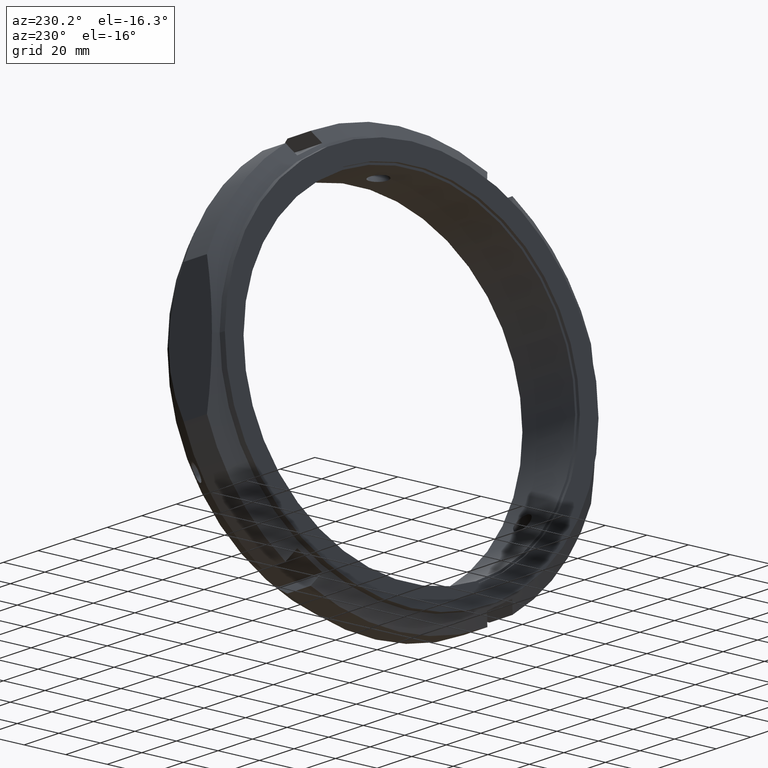
[diagram: clean part render]
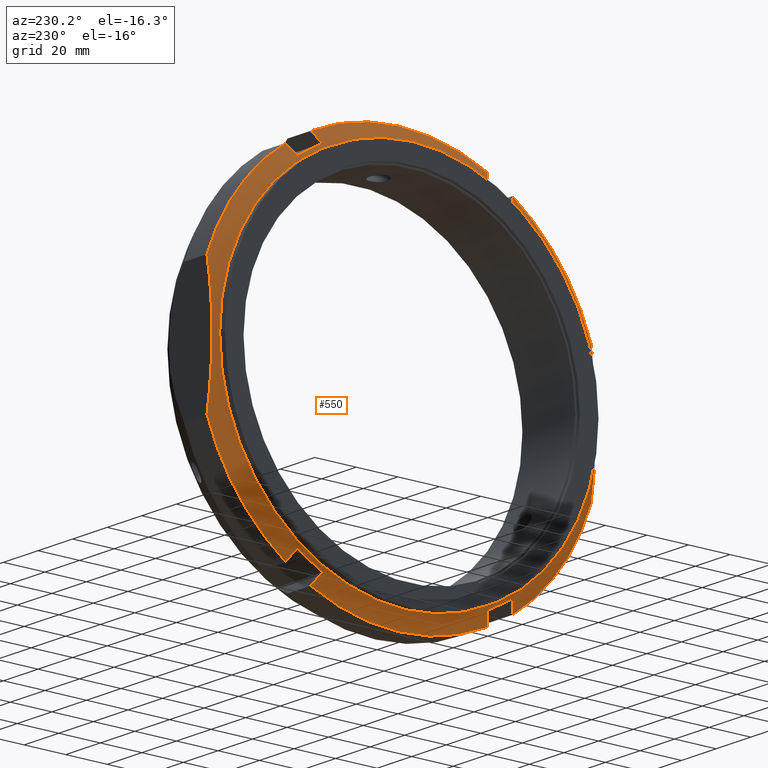
[diagram: same view with one face highlighted and labeled with its STEP entity id]
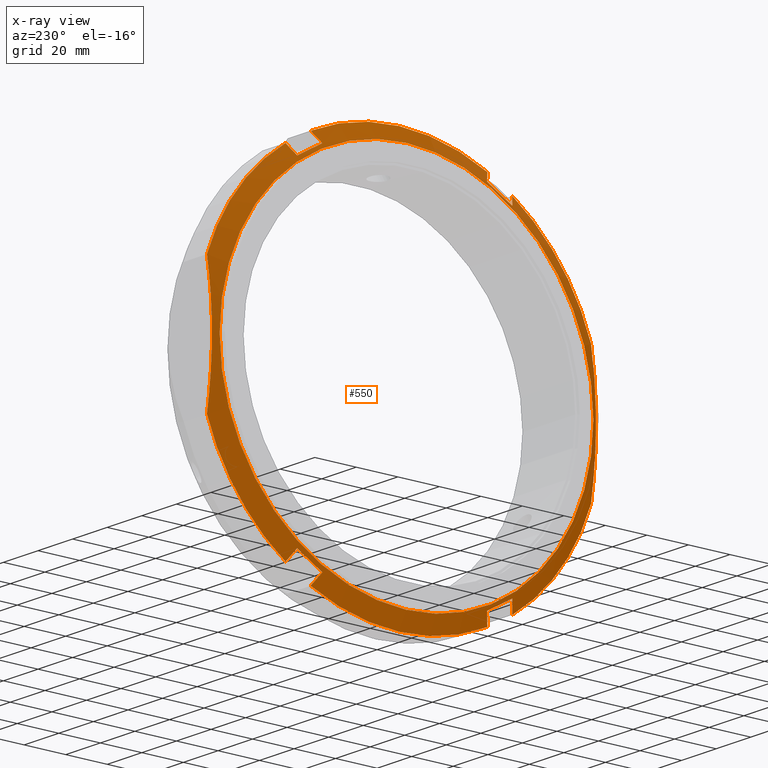
[diagram: x-ray of the same camera — body ghosted, the highlighted face saturated]
A machine part, auxiliary view. The second image highlights one B-rep face of the part: STEP entity #550.
The next image is the same camera in x-ray: the body ghosted, the highlighted face saturated — about 0% of this face is hidden behind the body in this view.
In plain terms, the highlighted conical surface has half-angle 60 deg.
Its self-contained STEP definition (entity closure, byte-faithful):
#73=CARTESIAN_POINT('',(4.020390926439882,51.81217782649103,-75.741324446276153));
#74=VERTEX_POINT('',#73);
#75=CARTESIAN_POINT('',(4.02039092643988,39.687822173508899,-82.741324446276138));
#76=VERTEX_POINT('',#75);
#77=CARTESIAN_POINT('',(4.020390926439882,51.81217782649103,-75.741324446276153));
#78=CARTESIAN_POINT('',(3.712109632995445,45.74999999990014,-79.241324446333778));
#79=CARTESIAN_POINT('',(4.02039092643988,39.687822173508899,-82.741324446276138));
#87=(BOUNDED_CURVE()B_SPLINE_CURVE(2,(#77,#78,#79),.UNSPECIFIED.,.F.,.U.)B_SPLINE_CURVE_WITH_KNOTS((3,3),(2.659556565316221,4.110967786608089),.UNSPECIFIED.)CURVE()GEOMETRIC_REPRESENTATION_ITEM()RATIONAL_B_SPLINE_CURVE((1.031280151536854,1.034293618954947,1.031280151536854))REPRESENTATION_ITEM(''));
#88=EDGE_CURVE('',#74,#76,#87,.T.);
#127=CARTESIAN_POINT('',(7.330127018922161,42.562018824970394,-87.719579077551813));
#128=VERTEX_POINT('',#127);
#129=CARTESIAN_POINT('',(4.02039092643988,39.687822173508899,-82.741324446276138));
#130=CARTESIAN_POINT('',(5.624859432743699,41.081392899205191,-85.155059747122777));
#131=CARTESIAN_POINT('',(7.330127018922161,42.562018824970394,-87.719579077551813));
#139=(BOUNDED_CURVE()B_SPLINE_CURVE(2,(#129,#130,#131),.UNSPECIFIED.,.F.,.U.)B_SPLINE_CURVE_WITH_KNOTS((3,3),(0.478668599135934,1.127520368114833),.UNSPECIFIED.)CURVE()GEOMETRIC_REPRESENTATION_ITEM()RATIONAL_B_SPLINE_CURVE((1.000681121779794,1.000802202903293,1.0))REPRESENTATION_ITEM(''));
#140=EDGE_CURVE('',#76,#128,#139,.T.);
#172=CARTESIAN_POINT('',(7.330127018922164,54.68637447795254,-80.719579077551828));
#173=VERTEX_POINT('',#172);
#174=CARTESIAN_POINT('',(7.330127018922161,54.68637447795254,-80.719579077551799));
#175=CARTESIAN_POINT('',(5.624859430328719,53.205748550089318,-78.15505974348892));
#176=CARTESIAN_POINT('',(4.020390926439882,51.81217782649103,-75.741324446276153));
#184=(BOUNDED_CURVE()B_SPLINE_CURVE(2,(#174,#175,#176),.UNSPECIFIED.,.F.,.U.)B_SPLINE_CURVE_WITH_KNOTS((3,3),(0.0,0.648851768317322),.UNSPECIFIED.)CURVE()GEOMETRIC_REPRESENTATION_ITEM()RATIONAL_B_SPLINE_CURVE((1.0,1.000802203088831,1.000681121938269))REPRESENTATION_ITEM(''));
#185=EDGE_CURVE('',#173,#74,#184,.T.);
#217=CARTESIAN_POINT('',(4.020390926439884,-51.812177826491101,-75.74132444627611));
#218=VERTEX_POINT('',#217);
#219=CARTESIAN_POINT('',(7.330127018922157,-54.68637447795259,-80.719579077551771));
#220=VERTEX_POINT('',#219);
#221=CARTESIAN_POINT('',(4.020390926439884,-51.812177826491101,-75.74132444627611));
#222=CARTESIAN_POINT('',(5.624859431519625,-53.205748551123982,-78.155059745280838));
#223=CARTESIAN_POINT('',(7.330127018922161,-54.686374477952597,-80.719579077551785));
#231=(BOUNDED_CURVE()B_SPLINE_CURVE(2,(#221,#222,#223),.UNSPECIFIED.,.F.,.U.)B_SPLINE_CURVE_WITH_KNOTS((3,3),(0.478668599486914,1.127520368114833),.UNSPECIFIED.)CURVE()GEOMETRIC_REPRESENTATION_ITEM()RATIONAL_B_SPLINE_CURVE((1.000681121833616,1.000802202966095,1.0))REPRESENTATION_ITEM(''));
#232=EDGE_CURVE('',#218,#220,#231,.T.);
#271=CARTESIAN_POINT('',(7.330127018922173,-42.562018824970465,-87.719579077551799));
#272=VERTEX_POINT('',#271);
#273=CARTESIAN_POINT('',(4.020390926439892,-39.687822173508962,-82.741324446276124));
#274=VERTEX_POINT('',#273);
#275=CARTESIAN_POINT('',(7.330127018922161,-42.562018824970465,-87.719579077551785));
#276=CARTESIAN_POINT('',(5.624859432177308,-41.08139289871319,-85.155059746270467));
#277=CARTESIAN_POINT('',(4.020390926439892,-39.687822173508962,-82.741324446276124));
#285=(BOUNDED_CURVE()B_SPLINE_CURVE(2,(#275,#276,#277),.UNSPECIFIED.,.F.,.U.)B_SPLINE_CURVE_WITH_KNOTS((3,3),(0.0,0.648851768803784),.UNSPECIFIED.)CURVE()GEOMETRIC_REPRESENTATION_ITEM()RATIONAL_B_SPLINE_CURVE((1.0,1.000802202906976,1.00068112178317))REPRESENTATION_ITEM(''));
#286=EDGE_CURVE('',#272,#274,#285,.T.);
#325=CARTESIAN_POINT('',(4.020390926439892,-39.687822173508962,-82.741324446276124));
#326=CARTESIAN_POINT('',(3.71210963299545,-45.750000000099845,-79.241324446218499));
#327=CARTESIAN_POINT('',(4.020390926439884,-51.812177826491101,-75.74132444627611));
#335=(BOUNDED_CURVE()B_SPLINE_CURVE(2,(#325,#326,#327),.UNSPECIFIED.,.F.,.U.)B_SPLINE_CURVE_WITH_KNOTS((3,3),(2.659556565316212,4.110967786608078),.UNSPECIFIED.)CURVE()GEOMETRIC_REPRESENTATION_ITEM()RATIONAL_B_SPLINE_CURVE((1.031280151536851,1.034293618954943,1.031280151536851))REPRESENTATION_ITEM(''));
#336=EDGE_CURVE('',#274,#218,#335,.T.);
#356=CARTESIAN_POINT('',(5.165063509461066,0.0,0.0));
#357=DIRECTION('',(1.0,0.0,0.0));
#358=DIRECTION('',(0.0,1.0,0.0));
#359=AXIS2_PLACEMENT_3D('',#356,#357,#358);
#360=CONICAL_SURFACE('',#359,93.75,60.000000000000043);
#361=CARTESIAN_POINT('',(2.999999999999974,90.0,0.0));
#362=VERTEX_POINT('',#361);
#363=CARTESIAN_POINT('',(2.999999999999974,0.0,0.0));
#364=DIRECTION('',(1.0,0.0,0.0));
#365=DIRECTION('',(0.0,1.0,0.0));
#366=AXIS2_PLACEMENT_3D('',#363,#364,#365);
#367=CIRCLE('',#366,90.0);
#368=EDGE_CURVE('',#362,#362,#367,.T.);
#369=ORIENTED_EDGE('',*,*,#368,.T.);
#370=EDGE_LOOP('',(#369));
#371=FACE_OUTER_BOUND('',#370,.T.);
#372=ORIENTED_EDGE('',*,*,#185,.T.);
#373=ORIENTED_EDGE('',*,*,#88,.T.);
#374=ORIENTED_EDGE('',*,*,#140,.T.);
#375=CARTESIAN_POINT('',(7.330127018922159,0.0,0.0));
#376=DIRECTION('',(1.0,0.0,0.0));
#377=DIRECTION('',(0.0,1.0,0.0));
#378=AXIS2_PLACEMENT_3D('',#375,#376,#377);
#379=CIRCLE('',#378,97.5);
#380=EDGE_CURVE('',#272,#128,#379,.T.);
#381=ORIENTED_EDGE('',*,*,#380,.F.);
#382=ORIENTED_EDGE('',*,*,#286,.T.);
#383=ORIENTED_EDGE('',*,*,#336,.T.);
#384=ORIENTED_EDGE('',*,*,#232,.T.);
#385=CARTESIAN_POINT('',(7.330127018922159,-92.500000000000014,-30.822070014844812));
#386=VERTEX_POINT('',#385);
#387=CARTESIAN_POINT('',(7.330127018922159,0.0,0.0));
#388=DIRECTION('',(1.0,0.0,0.0));
#389=DIRECTION('',(0.0,1.0,0.0));
#390=AXIS2_PLACEMENT_3D('',#387,#388,#389);
#391=CIRCLE('',#390,97.5);
#392=EDGE_CURVE('',#386,#220,#391,.T.);
#393=ORIENTED_EDGE('',*,*,#392,.F.);
#394=CARTESIAN_POINT('',(7.330127018922159,-92.500000000000057,30.822070014844726));
#395=VERTEX_POINT('',#394);
#396=CARTESIAN_POINT('',(7.33012701892215,-92.500000000000028,-30.822070014844726));
#397=CARTESIAN_POINT('',(1.704662857587416,-92.500000000000028,-3.264830E-014));
#398=CARTESIAN_POINT('',(7.330127018922146,-92.500000000000057,30.822070014844634));
#406=(BOUNDED_CURVE()B_SPLINE_CURVE(2,(#396,#397,#398),.UNSPECIFIED.,.F.,.U.)B_SPLINE_CURVE_WITH_KNOTS((3,3),(0.0,6.191391873668863),.UNSPECIFIED.)CURVE()GEOMETRIC_REPRESENTATION_ITEM()RATIONAL_B_SPLINE_CURVE((1.0,1.054054054054058,1.0))REPRESENTATION_ITEM(''));
#407=EDGE_CURVE('',#386,#395,#406,.T.);
#408=ORIENTED_EDGE('',*,*,#407,.T.);
#409=CARTESIAN_POINT('',(7.330127018922159,-54.68637447795259,80.719579077551771));
#410=VERTEX_POINT('',#409);
#411=CARTESIAN_POINT('',(7.330127018922159,0.0,0.0));
#412=DIRECTION('',(1.0,0.0,0.0));
#413=DIRECTION('',(0.0,1.0,0.0));
#414=AXIS2_PLACEMENT_3D('',#411,#412,#413);
#415=CIRCLE('',#414,97.5);
#416=EDGE_CURVE('',#410,#395,#415,.T.);
#417=ORIENTED_EDGE('',*,*,#416,.F.);
#418=CARTESIAN_POINT('',(4.020390926439884,-51.812177826491101,75.74132444627611));
#419=VERTEX_POINT('',#418);
#420=CARTESIAN_POINT('',(7.330127018922161,-54.686374477952597,80.719579077551785));
#421=CARTESIAN_POINT('',(5.624859431519625,-53.205748551123982,78.155059745280838));
#422=CARTESIAN_POINT('',(4.020390926439884,-51.812177826491101,75.74132444627611));
#430=(BOUNDED_CURVE()B_SPLINE_CURVE(2,(#420,#421,#422),.UNSPECIFIED.,.F.,.U.)B_SPLINE_CURVE_WITH_KNOTS((3,3),(0.0,0.648851768627919),.UNSPECIFIED.)CURVE()GEOMETRIC_REPRESENTATION_ITEM()RATIONAL_B_SPLINE_CURVE((1.0,1.000802202966095,1.000681121833616))REPRESENTATION_ITEM(''));
#431=EDGE_CURVE('',#410,#419,#430,.T.);
#432=ORIENTED_EDGE('',*,*,#431,.T.);
#433=CARTESIAN_POINT('',(4.020390926439892,-39.687822173508962,82.741324446276124));
#434=VERTEX_POINT('',#433);
#435=CARTESIAN_POINT('',(4.020390926439884,-51.812177826491101,75.74132444627611));
#436=CARTESIAN_POINT('',(3.712109632995452,-45.749999999900211,79.241324446333735));
#437=CARTESIAN_POINT('',(4.020390926439892,-39.687822173508962,82.741324446276124));
#445=(BOUNDED_CURVE()B_SPLINE_CURVE(2,(#435,#436,#437),.UNSPECIFIED.,.F.,.U.)B_SPLINE_CURVE_WITH_KNOTS((3,3),(2.659556565316226,4.110967786608091),.UNSPECIFIED.)CURVE()GEOMETRIC_REPRESENTATION_ITEM()RATIONAL_B_SPLINE_CURVE((1.031280151536851,1.034293618954943,1.031280151536851))REPRESENTATION_ITEM(''));
#446=EDGE_CURVE('',#419,#434,#445,.T.);
#447=ORIENTED_EDGE('',*,*,#446,.T.);
#448=CARTESIAN_POINT('',(7.330127018922159,-42.562018824970465,87.719579077551785));
#449=VERTEX_POINT('',#448);
#450=CARTESIAN_POINT('',(4.020390926439892,-39.687822173508962,82.741324446276124));
#451=CARTESIAN_POINT('',(5.624859432177302,-41.08139289871319,85.155059746270453));
#452=CARTESIAN_POINT('',(7.330127018922161,-42.562018824970465,87.719579077551785));
#460=(BOUNDED_CURVE()B_SPLINE_CURVE(2,(#450,#451,#452),.UNSPECIFIED.,.F.,.U.)B_SPLINE_CURVE_WITH_KNOTS((3,3),(0.478668599311049,1.127520368114834),.UNSPECIFIED.)CURVE()GEOMETRIC_REPRESENTATION_ITEM()RATIONAL_B_SPLINE_CURVE((1.00068112178317,1.000802202906976,1.0))REPRESENTATION_ITEM(''));
#461=EDGE_CURVE('',#434,#449,#460,.T.);
#462=ORIENTED_EDGE('',*,*,#461,.T.);
#463=CARTESIAN_POINT('',(7.330127018922159,42.562018824970394,87.719579077551813));
#464=VERTEX_POINT('',#463);
#465=CARTESIAN_POINT('',(7.330127018922159,0.0,0.0));
#466=DIRECTION('',(1.0,0.0,0.0));
#467=DIRECTION('',(0.0,1.0,0.0));
#468=AXIS2_PLACEMENT_3D('',#465,#466,#467);
#469=CIRCLE('',#468,97.5);
#470=EDGE_CURVE('',#464,#449,#469,.T.);
#471=ORIENTED_EDGE('',*,*,#470,.F.);
#472=CARTESIAN_POINT('',(4.02039092643988,39.687822173508899,82.741324446276138));
#473=VERTEX_POINT('',#472);
#474=CARTESIAN_POINT('',(7.330127018922161,42.562018824970394,87.719579077551813));
#475=CARTESIAN_POINT('',(5.624859432743696,41.081392899205198,85.155059747122763));
#476=CARTESIAN_POINT('',(4.02039092643988,39.687822173508899,82.741324446276138));
#484=(BOUNDED_CURVE()B_SPLINE_CURVE(2,(#474,#475,#476),.UNSPECIFIED.,.F.,.U.)B_SPLINE_CURVE_WITH_KNOTS((3,3),(0.0,0.648851768978899),.UNSPECIFIED.)CURVE()GEOMETRIC_REPRESENTATION_ITEM()RATIONAL_B_SPLINE_CURVE((1.0,1.000802202903293,1.000681121779794))REPRESENTATION_ITEM(''));
#485=EDGE_CURVE('',#464,#473,#484,.T.);
#486=ORIENTED_EDGE('',*,*,#485,.T.);
#487=CARTESIAN_POINT('',(4.020390926439882,51.81217782649103,75.741324446276153));
#488=VERTEX_POINT('',#487);
#489=CARTESIAN_POINT('',(4.02039092643988,39.687822173508899,82.741324446276138));
#490=CARTESIAN_POINT('',(3.712109632995446,45.750000000099782,79.241324446218499));
#491=CARTESIAN_POINT('',(4.020390926439882,51.81217782649103,75.741324446276153));
#499=(BOUNDED_CURVE()B_SPLINE_CURVE(2,(#489,#490,#491),.UNSPECIFIED.,.F.,.U.)B_SPLINE_CURVE_WITH_KNOTS((3,3),(2.659556565316221,4.110967786608089),.UNSPECIFIED.)CURVE()GEOMETRIC_REPRESENTATION_ITEM()RATIONAL_B_SPLINE_CURVE((1.031280151536854,1.034293618954947,1.031280151536854))REPRESENTATION_ITEM(''));
#500=EDGE_CURVE('',#473,#488,#499,.T.);
#501=ORIENTED_EDGE('',*,*,#500,.T.);
#502=CARTESIAN_POINT('',(7.330127018922159,54.68637447795254,80.719579077551799));
#503=VERTEX_POINT('',#502);
#504=CARTESIAN_POINT('',(4.020390926439882,51.81217782649103,75.741324446276153));
#505=CARTESIAN_POINT('',(5.62485943032872,53.205748550089318,78.15505974348892));
#506=CARTESIAN_POINT('',(7.330127018922161,54.68637447795254,80.719579077551799));
#514=(BOUNDED_CURVE()B_SPLINE_CURVE(2,(#504,#505,#506),.UNSPECIFIED.,.F.,.U.)B_SPLINE_CURVE_WITH_KNOTS((3,3),(0.47866859979751,1.127520368114832),.UNSPECIFIED.)CURVE()GEOMETRIC_REPRESENTATION_ITEM()RATIONAL_B_SPLINE_CURVE((1.000681121938269,1.000802203088831,1.0))REPRESENTATION_ITEM(''));
#515=EDGE_CURVE('',#488,#503,#514,.T.);
#516=ORIENTED_EDGE('',*,*,#515,.T.);
#517=CARTESIAN_POINT('',(7.330127018922159,92.500000000000071,30.822070014844677));
#518=VERTEX_POINT('',#517);
#519=CARTESIAN_POINT('',(7.330127018922159,0.0,0.0));
#520=DIRECTION('',(1.0,0.0,0.0));
#521=DIRECTION('',(0.0,1.0,0.0));
#522=AXIS2_PLACEMENT_3D('',#519,#520,#521);
#523=CIRCLE('',#522,97.5);
#524=EDGE_CURVE('',#518,#503,#523,.T.);
#525=ORIENTED_EDGE('',*,*,#524,.F.);
#526=CARTESIAN_POINT('',(7.330127018922159,92.500000000000028,-30.822070014844765));
#527=VERTEX_POINT('',#526);
#528=CARTESIAN_POINT('',(7.330127018922158,92.500000000000071,30.822070014844694));
#529=CARTESIAN_POINT('',(1.704662857587407,92.500000000000057,-3.558846E-014));
#530=CARTESIAN_POINT('',(7.330127018922161,92.500000000000028,-30.822070014844783));
#538=(BOUNDED_CURVE()B_SPLINE_CURVE(2,(#528,#529,#530),.UNSPECIFIED.,.F.,.U.)B_SPLINE_CURVE_WITH_KNOTS((3,3),(0.0,6.191391873668874),.UNSPECIFIED.)CURVE()GEOMETRIC_REPRESENTATION_ITEM()RATIONAL_B_SPLINE_CURVE((1.0,1.054054054054052,1.0))REPRESENTATION_ITEM(''));
#539=EDGE_CURVE('',#518,#527,#538,.T.);
#540=ORIENTED_EDGE('',*,*,#539,.T.);
#541=CARTESIAN_POINT('',(7.330127018922159,0.0,0.0));
#542=DIRECTION('',(1.0,0.0,0.0));
#543=DIRECTION('',(0.0,1.0,0.0));
#544=AXIS2_PLACEMENT_3D('',#541,#542,#543);
#545=CIRCLE('',#544,97.5);
#546=EDGE_CURVE('',#173,#527,#545,.T.);
#547=ORIENTED_EDGE('',*,*,#546,.F.);
#548=EDGE_LOOP('',(#372,#373,#374,#381,#382,#383,#384,#393,#408,#417,#432,#447,#462,#471,#486,#501,#516,#525,#540,#547));
#549=FACE_BOUND('',#548,.T.);
#550=ADVANCED_FACE('',(#371,#549),#360,.T.);